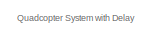
[diagram: root canvas - part 1/9, top center region]
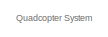
[diagram: root canvas - part 2/9, top left region]
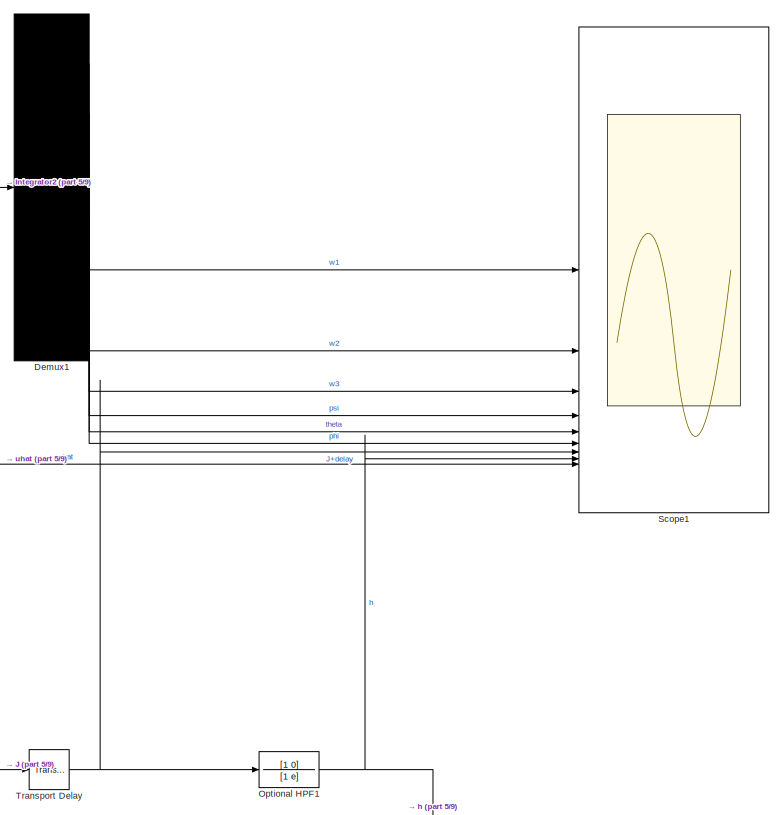
[diagram: root canvas - part 3/9, top right region]
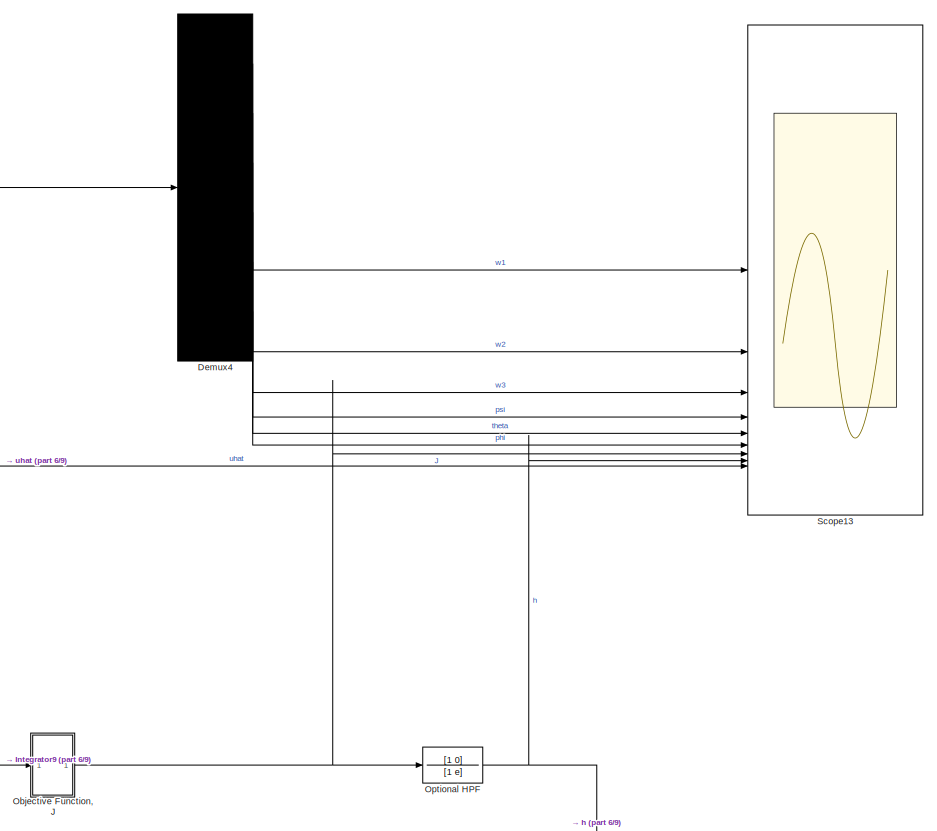
[diagram: root canvas - part 4/9, top left region]
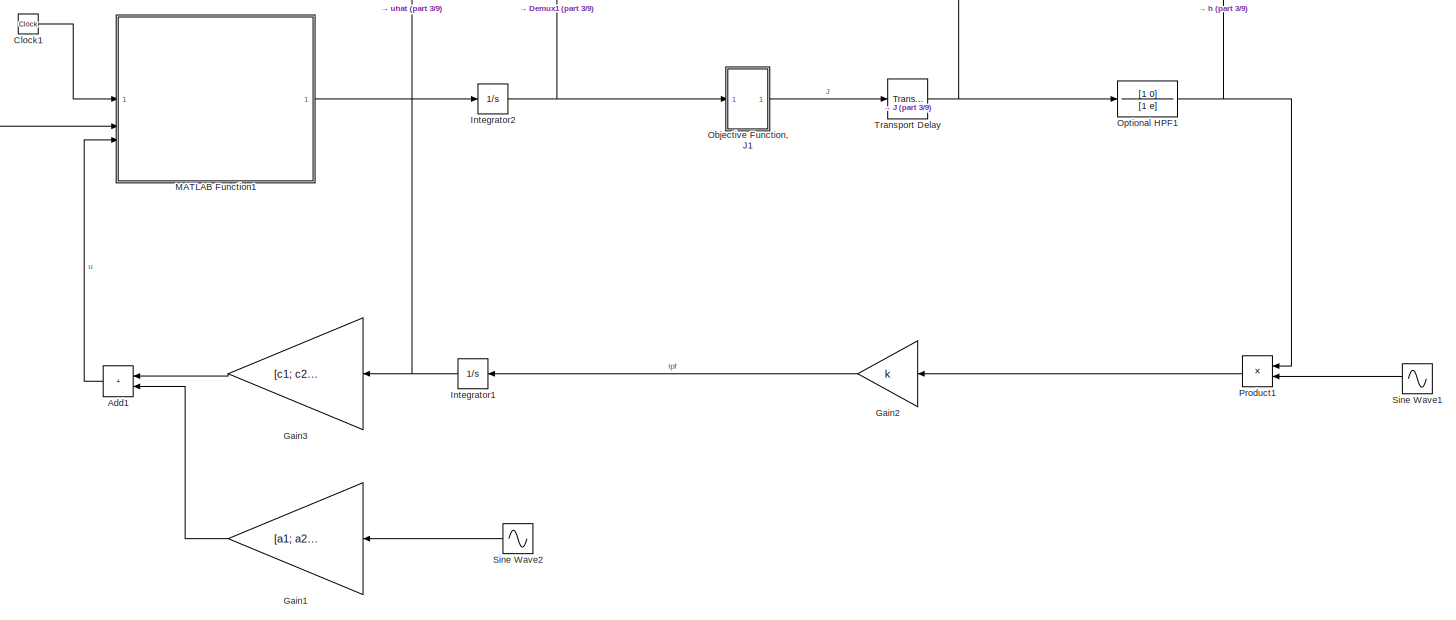
[diagram: root canvas - part 5/9, middle right region]
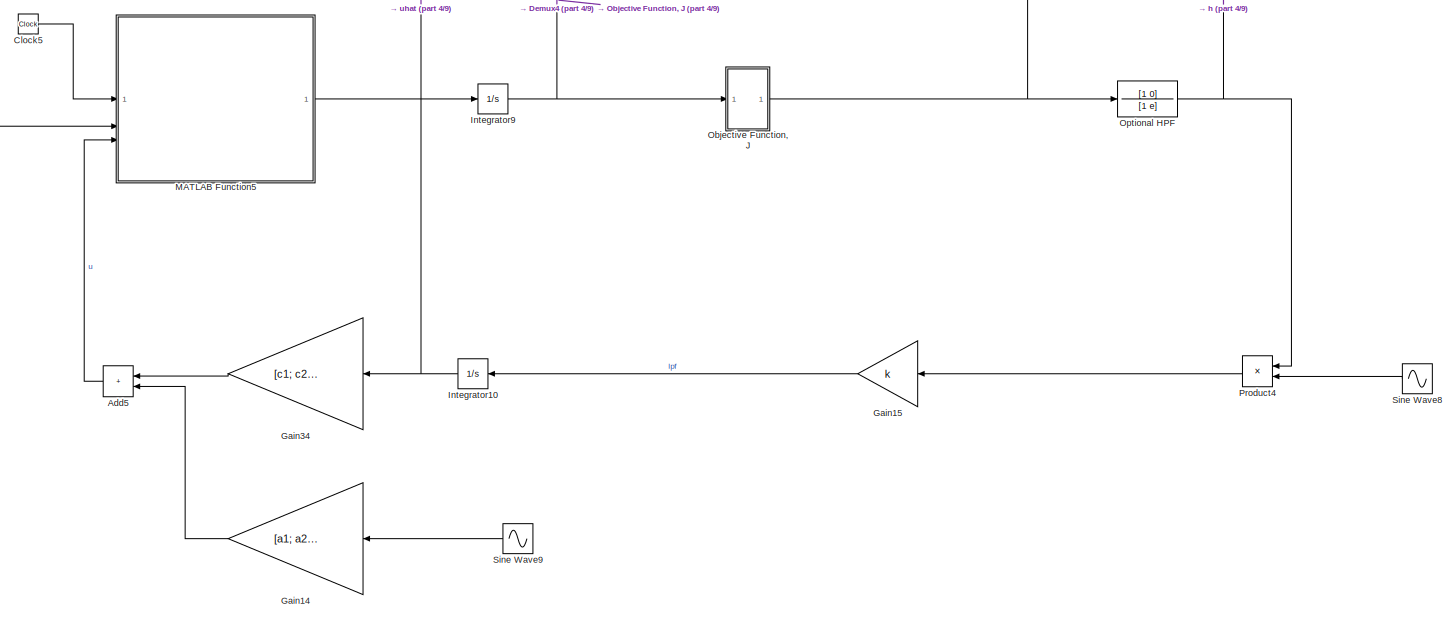
[diagram: root canvas - part 6/9, middle left region]
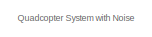
[diagram: root canvas - part 7/9, middle left region]
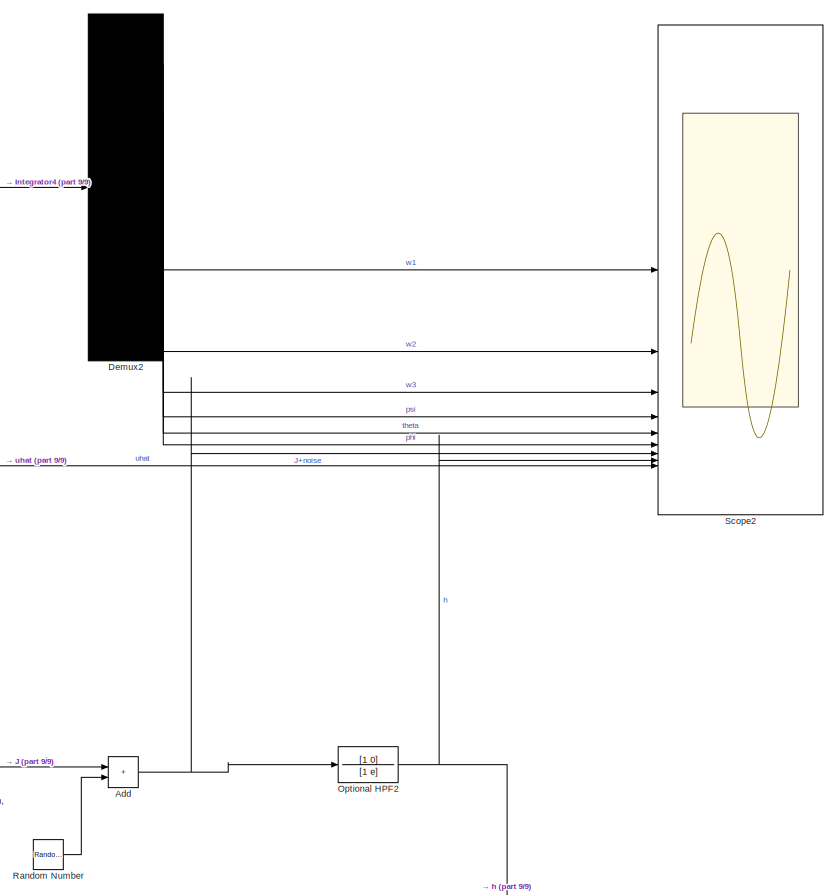
[diagram: root canvas - part 8/9, bottom center region]
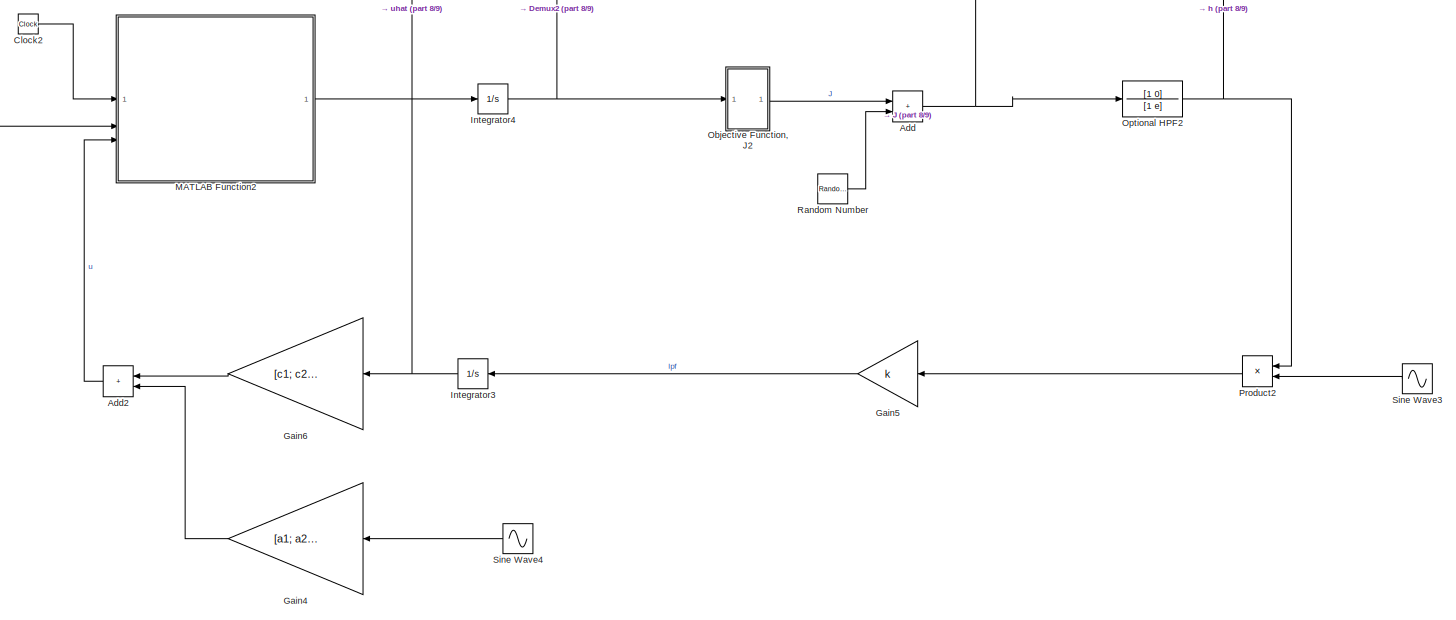
[diagram: root canvas - part 9/9, bottom center region]
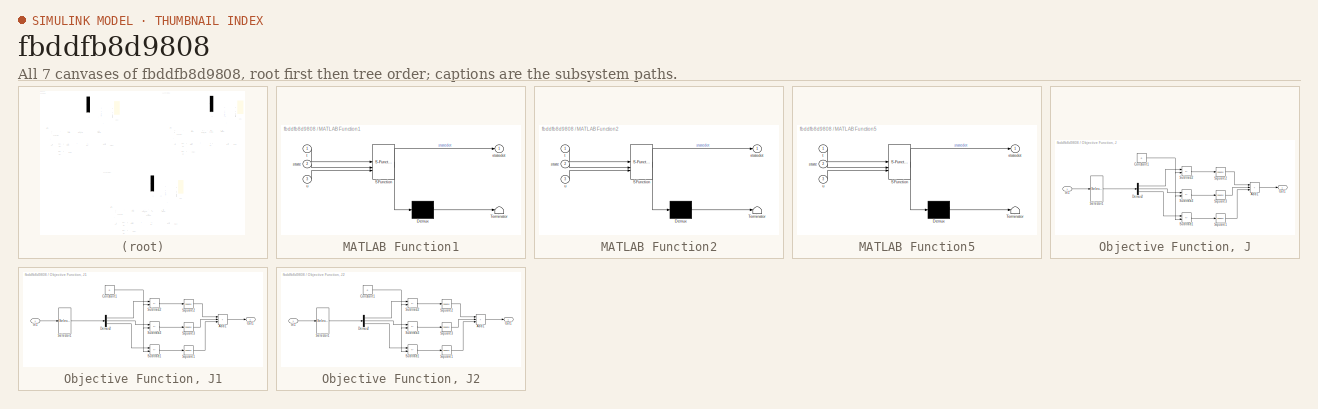
[diagram: thumbnail index - all 7 canvases of the model, root first then tree order]
MODEL slx_fbddfb8d9808
KIND model
CONFIG AbsTol = 1e-10
CONFIG EnableMultiTasking = off
CONFIG FixedStep = 0.001
CONFIG MaxStep = auto
CONFIG MinStep = auto
CONFIG RelTol = 1e-10
CONFIG SampleTimeConstraint = Unconstrained
CONFIG SolverName = ode4
CONFIG StartTime = 0.0
CONFIG StopTime = 300
BLOCK [Sum] Add
  IconShape = rectangular
BLOCK [Sum] Add1
  IconShape = rectangular
BLOCK [Sum] Add2
  IconShape = rectangular
BLOCK [Sum] Add5
  IconShape = rectangular
BLOCK [Clock] Clock1
BLOCK [Clock] Clock2
BLOCK [Clock] Clock5
BLOCK [Demux] Demux1
  Outputs = 6
BLOCK [Demux] Demux2
  Outputs = 6
BLOCK [Demux] Demux4
  Outputs = 6
BLOCK [Gain] Gain1
  Gain = [a1; a2; a3]
BLOCK [Gain] Gain14
  Gain = [a1; a2; a3]
BLOCK [Gain] Gain15
  Gain = k
BLOCK [Gain] Gain2
  Gain = k
BLOCK [Gain] Gain3
  Gain = [c1; c2; c3]
BLOCK [Gain] Gain34
  Gain = [c1; c2; c3]
BLOCK [Gain] Gain4
  Gain = [a1; a2; a3]
BLOCK [Gain] Gain5
  Gain = k
BLOCK [Gain] Gain6
  Gain = [c1; c2; c3]
BLOCK [Integrator] Integrator1
BLOCK [Integrator] Integrator10
BLOCK [Integrator] Integrator2
  InitialCondition = [0; 0; 0; 10*pi/180; 15*pi/180; 12*pi/180]
BLOCK [Integrator] Integrator3
BLOCK [Integrator] Integrator4
  InitialCondition = [0; 0; 0; 10*pi/180; 15*pi/180; 12*pi/180]
BLOCK [Integrator] Integrator9
  InitialCondition = [0; 0; 0; 10*pi/180; 15*pi/180; 12*pi/180]
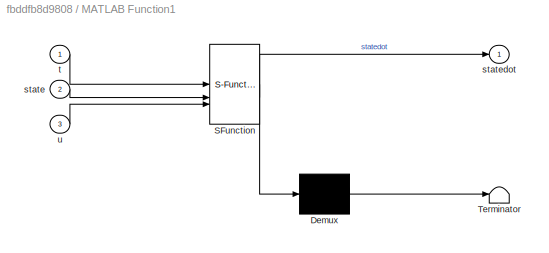
BLOCK [SubSystem] MATLAB Function1
  ErrorFcn = Stateflow.Translate.translate
  PermitHierarchicalResolution = ExplicitOnly
  SFBlockType = MATLAB Function
  TreatAsAtomicUnit = on
BLOCK [Demux] MATLAB Function1/ Demux 
  Outputs = 1
BLOCK [S-Function] MATLAB Function1/ SFunction 
  EnableBusSupport = on
  FunctionName = sf_sfun
  PortCounts = [3 2]
  SFcnIsStateOwnerBlock = off
  SFunctionDeploymentMode = off
  Tag = Stateflow S-Function 1
BLOCK [Terminator] MATLAB Function1/ Terminator 
BLOCK [Inport] MATLAB Function1/state
  Port = 2
BLOCK [Outport] MATLAB Function1/statedot
BLOCK [Inport] MATLAB Function1/t
BLOCK [Inport] MATLAB Function1/u
  Port = 3
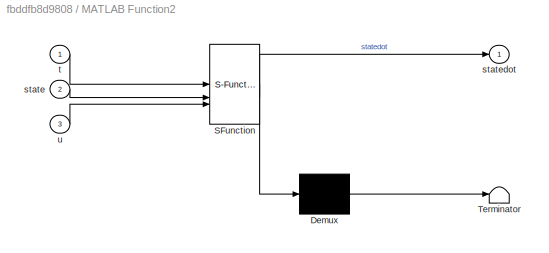
BLOCK [SubSystem] MATLAB Function2
  ErrorFcn = Stateflow.Translate.translate
  PermitHierarchicalResolution = ExplicitOnly
  SFBlockType = MATLAB Function
  TreatAsAtomicUnit = on
BLOCK [Demux] MATLAB Function2/ Demux 
  Outputs = 1
BLOCK [S-Function] MATLAB Function2/ SFunction 
  EnableBusSupport = on
  FunctionName = sf_sfun
  PortCounts = [3 2]
  SFcnIsStateOwnerBlock = off
  SFunctionDeploymentMode = off
  Tag = Stateflow S-Function 2
BLOCK [Terminator] MATLAB Function2/ Terminator 
BLOCK [Inport] MATLAB Function2/state
  Port = 2
BLOCK [Outport] MATLAB Function2/statedot
BLOCK [Inport] MATLAB Function2/t
BLOCK [Inport] MATLAB Function2/u
  Port = 3
BLOCK [SubSystem] MATLAB Function5
  ErrorFcn = Stateflow.Translate.translate
  PermitHierarchicalResolution = ExplicitOnly
  SFBlockType = MATLAB Function
  TreatAsAtomicUnit = on
BLOCK [Demux] MATLAB Function5/ Demux 
  Outputs = 1
BLOCK [S-Function] MATLAB Function5/ SFunction 
  EnableBusSupport = on
  FunctionName = sf_sfun
  PortCounts = [3 2]
  SFcnIsStateOwnerBlock = off
  SFunctionDeploymentMode = off
  Tag = Stateflow S-Function 5
BLOCK [Terminator] MATLAB Function5/ Terminator 
BLOCK [Inport] MATLAB Function5/state
  Port = 2
BLOCK [Outport] MATLAB Function5/statedot
BLOCK [Inport] MATLAB Function5/t
BLOCK [Inport] MATLAB Function5/u
  Port = 3
BLOCK [SubSystem] Objective Function, J
BLOCK [Sum] Objective Function, J/Add1
  IconShape = rectangular
  Inputs = +++
BLOCK [Constant] Objective Function, J/Constant1
  Value = 0
BLOCK [Demux] Objective Function, J/Demux2
  Outputs = 3
BLOCK [Inport] Objective Function, J/In1
BLOCK [Outport] Objective Function, J/Out1
BLOCK [Selector] Objective Function, J/Selector1
  IndexOptions = Index vector (dialog)
  Indices = [4 5 6]
  InputPortWidth = 6
  OutputSizes = 1
BLOCK [Math] Objective Function, J/Square1
  Operator = square
BLOCK [Math] Objective Function, J/Square2
  Operator = square
BLOCK [Math] Objective Function, J/Square3
  Operator = square
BLOCK [Sum] Objective Function, J/Subtract1
  IconShape = rectangular
  Inputs = +-
BLOCK [Sum] Objective Function, J/Subtract2
  IconShape = rectangular
  Inputs = +-
BLOCK [Sum] Objective Function, J/Subtract3
  IconShape = rectangular
  Inputs = +-
BLOCK [SubSystem] Objective Function, J1
BLOCK [Sum] Objective Function, J1/Add1
  IconShape = rectangular
  Inputs = +++
BLOCK [Constant] Objective Function, J1/Constant1
  Value = 0
BLOCK [Demux] Objective Function, J1/Demux2
  Outputs = 3
BLOCK [Inport] Objective Function, J1/In1
BLOCK [Outport] Objective Function, J1/Out1
BLOCK [Selector] Objective Function, J1/Selector1
  IndexOptions = Index vector (dialog)
  Indices = [4 5 6]
  InputPortWidth = 6
  OutputSizes = 1
BLOCK [Math] Objective Function, J1/Square1
  Operator = square
BLOCK [Math] Objective Function, J1/Square2
  Operator = square
BLOCK [Math] Objective Function, J1/Square3
  Operator = square
BLOCK [Sum] Objective Function, J1/Subtract1
  IconShape = rectangular
  Inputs = +-
BLOCK [Sum] Objective Function, J1/Subtract2
  IconShape = rectangular
  Inputs = +-
BLOCK [Sum] Objective Function, J1/Subtract3
  IconShape = rectangular
  Inputs = +-
BLOCK [SubSystem] Objective Function, J2
BLOCK [Sum] Objective Function, J2/Add1
  IconShape = rectangular
  Inputs = +++
BLOCK [Constant] Objective Function, J2/Constant1
  Value = 0
BLOCK [Demux] Objective Function, J2/Demux2
  Outputs = 3
BLOCK [Inport] Objective Function, J2/In1
BLOCK [Outport] Objective Function, J2/Out1
BLOCK [Selector] Objective Function, J2/Selector1
  IndexOptions = Index vector (dialog)
  Indices = [4 5 6]
  InputPortWidth = 6
  OutputSizes = 1
BLOCK [Math] Objective Function, J2/Square1
  Operator = square
BLOCK [Math] Objective Function, J2/Square2
  Operator = square
BLOCK [Math] Objective Function, J2/Square3
  Operator = square
BLOCK [Sum] Objective Function, J2/Subtract1
  IconShape = rectangular
  Inputs = +-
BLOCK [Sum] Objective Function, J2/Subtract2
  IconShape = rectangular
  Inputs = +-
BLOCK [Sum] Objective Function, J2/Subtract3
  IconShape = rectangular
  Inputs = +-
BLOCK [TransferFcn] Optional HPF
  Denominator = [1 e]
  Numerator = [1 0]
BLOCK [TransferFcn] Optional HPF1
  Denominator = [1 e]
  Numerator = [1 0]
BLOCK [TransferFcn] Optional HPF2
  Denominator = [1 e]
  Numerator = [1 0]
BLOCK [Product] Product1
BLOCK [Product] Product2
BLOCK [Product] Product4
BLOCK [RandomNumber] Random Number
  SampleTime = 0.001
  Seed = 1
  Variance = variance
BLOCK [Scope] Scope1
  Floating = off
  NumInputPorts = 9
  ScopeSpecificationString = Simulink.scopes.TimeScopeBlockCfg('CurrentConfiguration', extmgr.ConfigurationSet(extmgr.Configuration('Core','General UI',true,'FigureColor',[1 1 1]),extmgr.Configuration('Core','Source UI',true),extmgr.Configuration('Sources','WiredSimulink',true,'DataLoggingVariableName','ScopeData1'),extmgr.Configuration('Visuals','Time Domain',true,'SerializedDisplays',{struct('MinYLimReal','-0.48765','MaxYLi...<+8194ch>
BLOCK [Scope] Scope13
  Floating = off
  NumInputPorts = 9
  ScopeSpecificationString = Simulink.scopes.TimeScopeBlockCfg('CurrentConfiguration', extmgr.ConfigurationSet(extmgr.Configuration('Core','General UI',true,'FigureColor',[1 1 1]),extmgr.Configuration('Core','Source UI',true),extmgr.Configuration('Sources','WiredSimulink',true,'DataLoggingVariableName','ScopeData10'),extmgr.Configuration('Visuals','Time Domain',true,'SerializedDisplays',{struct('MinYLimReal','-0.5488','MaxYLi...<+8162ch>
BLOCK [Scope] Scope2
  Floating = off
  NumInputPorts = 9
  ScopeSpecificationString = Simulink.scopes.TimeScopeBlockCfg('CurrentConfiguration', extmgr.ConfigurationSet(extmgr.Configuration('Core','General UI',true,'FigureColor',[1 1 1]),extmgr.Configuration('Core','Source UI',true),extmgr.Configuration('Sources','WiredSimulink',true,'DataLoggingVariableName','ScopeData2'),extmgr.Configuration('Visuals','Time Domain',true,'SerializedDisplays',{struct('MinYLimReal','-0.54947','MaxYLi...<+8168ch>
BLOCK [Sin] Sine Wave1
  Amplitude = omega
  Frequency = omega
  Phase = pi/2
  SampleTime = 0
BLOCK [Sin] Sine Wave2
  Amplitude = omega
  Frequency = omega
  Phase = pi/2
  SampleTime = 0
BLOCK [Sin] Sine Wave3
  Amplitude = omega
  Frequency = omega
  Phase = pi/2
  SampleTime = 0
BLOCK [Sin] Sine Wave4
  Amplitude = omega
  Frequency = omega
  Phase = pi/2
  SampleTime = 0
BLOCK [Sin] Sine Wave8
  Amplitude = omega
  Frequency = omega
  Phase = pi/2
  SampleTime = 0
BLOCK [Sin] Sine Wave9
  Amplitude = omega
  Frequency = omega
  Phase = pi/2
  SampleTime = 0
BLOCK [TransportDelay] Transport Delay
  DelayTime = delay
  InitialOutput = (10*pi/180 - 0)^2 + (15*pi/180 - 0)^2 + (12*pi/180 - 0)^2
ANNOTATION (root): Quadcopter System
ANNOTATION (root): Quadcopter System with Delay
ANNOTATION (root): Quadcopter System with Noise
LINE Add1:1 -> MATLAB Function1:3
LINE Add2:1 -> MATLAB Function2:3
LINE Add5:1 -> MATLAB Function5:3
NET Add:1 -> Optional HPF2:1, Scope2:7
LINE Clock1:1 -> MATLAB Function1:1
LINE Clock2:1 -> MATLAB Function2:1
LINE Clock5:1 -> MATLAB Function5:1
LINE Demux1:1 -> Scope1:1
LINE Demux1:2 -> Scope1:2
LINE Demux1:3 -> Scope1:3
LINE Demux1:4 -> Scope1:4
LINE Demux1:5 -> Scope1:5
LINE Demux1:6 -> Scope1:6
LINE Demux2:1 -> Scope2:1
LINE Demux2:2 -> Scope2:2
LINE Demux2:3 -> Scope2:3
LINE Demux2:4 -> Scope2:4
LINE Demux2:5 -> Scope2:5
LINE Demux2:6 -> Scope2:6
LINE Demux4:1 -> Scope13:1
LINE Demux4:2 -> Scope13:2
LINE Demux4:3 -> Scope13:3
LINE Demux4:4 -> Scope13:4
LINE Demux4:5 -> Scope13:5
LINE Demux4:6 -> Scope13:6
LINE Gain14:1 -> Add5:2
LINE Gain15:1 -> Integrator10:1
LINE Gain1:1 -> Add1:2
LINE Gain2:1 -> Integrator1:1
LINE Gain34:1 -> Add5:1
LINE Gain3:1 -> Add1:1
LINE Gain4:1 -> Add2:2
LINE Gain5:1 -> Integrator3:1
LINE Gain6:1 -> Add2:1
NET Integrator10:1 -> Gain34:1, Scope13:9
NET Integrator1:1 -> Gain3:1, Scope1:9
NET Integrator2:1 -> Demux1:1, MATLAB Function1:2, Objective Function, J1:1
NET Integrator3:1 -> Gain6:1, Scope2:9
NET Integrator4:1 -> Demux2:1, MATLAB Function2:2, Objective Function, J2:1
NET Integrator9:1 -> Demux4:1, MATLAB Function5:2, Objective Function, J:1
LINE MATLAB Function1:1 -> Integrator2:1
LINE MATLAB Function2:1 -> Integrator4:1
LINE MATLAB Function5:1 -> Integrator9:1
LINE Objective Function, J/Add1:1 -> Objective Function, J/Out1:1
NET Objective Function, J/Constant1:1 -> Objective Function, J/Subtract1:2, Objective Function, J/Subtract2:2, Objective Function, J/Subtract3:2
LINE Objective Function, J/Demux2:1 -> Objective Function, J/Subtract2:1
LINE Objective Function, J/Demux2:2 -> Objective Function, J/Subtract3:1
LINE Objective Function, J/Demux2:3 -> Objective Function, J/Subtract1:1
LINE Objective Function, J/In1:1 -> Objective Function, J/Selector1:1
LINE Objective Function, J/Selector1:1 -> Objective Function, J/Demux2:1
LINE Objective Function, J/Square1:1 -> Objective Function, J/Add1:3
LINE Objective Function, J/Square2:1 -> Objective Function, J/Add1:1
LINE Objective Function, J/Square3:1 -> Objective Function, J/Add1:2
LINE Objective Function, J/Subtract1:1 -> Objective Function, J/Square1:1
LINE Objective Function, J/Subtract2:1 -> Objective Function, J/Square2:1
LINE Objective Function, J/Subtract3:1 -> Objective Function, J/Square3:1
LINE Objective Function, J1/Add1:1 -> Objective Function, J1/Out1:1
NET Objective Function, J1/Constant1:1 -> Objective Function, J1/Subtract1:2, Objective Function, J1/Subtract2:2, Objective Function, J1/Subtract3:2
LINE Objective Function, J1/Demux2:1 -> Objective Function, J1/Subtract2:1
LINE Objective Function, J1/Demux2:2 -> Objective Function, J1/Subtract3:1
LINE Objective Function, J1/Demux2:3 -> Objective Function, J1/Subtract1:1
LINE Objective Function, J1/In1:1 -> Objective Function, J1/Selector1:1
LINE Objective Function, J1/Selector1:1 -> Objective Function, J1/Demux2:1
LINE Objective Function, J1/Square1:1 -> Objective Function, J1/Add1:3
LINE Objective Function, J1/Square2:1 -> Objective Function, J1/Add1:1
LINE Objective Function, J1/Square3:1 -> Objective Function, J1/Add1:2
LINE Objective Function, J1/Subtract1:1 -> Objective Function, J1/Square1:1
LINE Objective Function, J1/Subtract2:1 -> Objective Function, J1/Square2:1
LINE Objective Function, J1/Subtract3:1 -> Objective Function, J1/Square3:1
LINE Objective Function, J1:1 -> Transport Delay:1
LINE Objective Function, J2/Add1:1 -> Objective Function, J2/Out1:1
NET Objective Function, J2/Constant1:1 -> Objective Function, J2/Subtract1:2, Objective Function, J2/Subtract2:2, Objective Function, J2/Subtract3:2
LINE Objective Function, J2/Demux2:1 -> Objective Function, J2/Subtract2:1
LINE Objective Function, J2/Demux2:2 -> Objective Function, J2/Subtract3:1
LINE Objective Function, J2/Demux2:3 -> Objective Function, J2/Subtract1:1
LINE Objective Function, J2/In1:1 -> Objective Function, J2/Selector1:1
LINE Objective Function, J2/Selector1:1 -> Objective Function, J2/Demux2:1
LINE Objective Function, J2/Square1:1 -> Objective Function, J2/Add1:3
LINE Objective Function, J2/Square2:1 -> Objective Function, J2/Add1:1
LINE Objective Function, J2/Square3:1 -> Objective Function, J2/Add1:2
LINE Objective Function, J2/Subtract1:1 -> Objective Function, J2/Square1:1
LINE Objective Function, J2/Subtract2:1 -> Objective Function, J2/Square2:1
LINE Objective Function, J2/Subtract3:1 -> Objective Function, J2/Square3:1
LINE Objective Function, J2:1 -> Add:1
NET Objective Function, J:1 -> Optional HPF:1, Scope13:7
NET Optional HPF1:1 -> Product1:1, Scope1:8
NET Optional HPF2:1 -> Product2:1, Scope2:8
NET Optional HPF:1 -> Product4:1, Scope13:8
LINE Product1:1 -> Gain2:1
LINE Product2:1 -> Gain5:1
LINE Product4:1 -> Gain15:1
LINE Random Number:1 -> Add:2
LINE Sine Wave1:1 -> Product1:2
LINE Sine Wave2:1 -> Gain1:1
LINE Sine Wave3:1 -> Product2:2
LINE Sine Wave4:1 -> Gain4:1
LINE Sine Wave8:1 -> Product4:2
LINE Sine Wave9:1 -> Gain14:1
NET Transport Delay:1 -> Optional HPF1:1, Scope1:7
note: NET lines group one-source signal fan-out (src -> all destinations, sorted); 1:1 wires keep LINE
CHART MATLAB Function2 states=1 transitions=1
  STATE_LABEL 'eML_blk_kernel()'
  STATE_LABEL 'SCRIPT:\nfunction statedot = dynamics(t,state,u)\nw1 = state(1);\nw2 = state(2);\nw3 = state(3);\npsi = state(4);\ntheta = state(5);\nphi = state(6);\n\nkr = diag([0.1, 0.1, 0.15]);\nI = diag([0.0075, 0.0075, 0.013]); % kg*m^2\n\nwArray = [w1; w2; w3];\nwSkewSym = [0 -w3 w2;\n            w3 0 -w1;\n            -w2 w1 0];\n\n\nwdot = I\\(-wSkewSym*(I*wArray) - kr*wArray) + u;\n\nangdot = ((1/cos(theta)) .* [0, sin(phi)...<+212ch>'  <repeated x3 — deduplicated; at blocks: MATLAB Function2, MATLAB Function5, MATLAB Function1>
CHART MATLAB Function5 states=1 transitions=1
  STATE_LABEL 'eML_blk_kernel()'
CHART MATLAB Function1 states=1 transitions=1
  STATE_LABEL 'eML_blk_kernel()'
CHART  states=0 transitions=0
CHART  states=0 transitions=0
CHART  states=0 transitions=0
